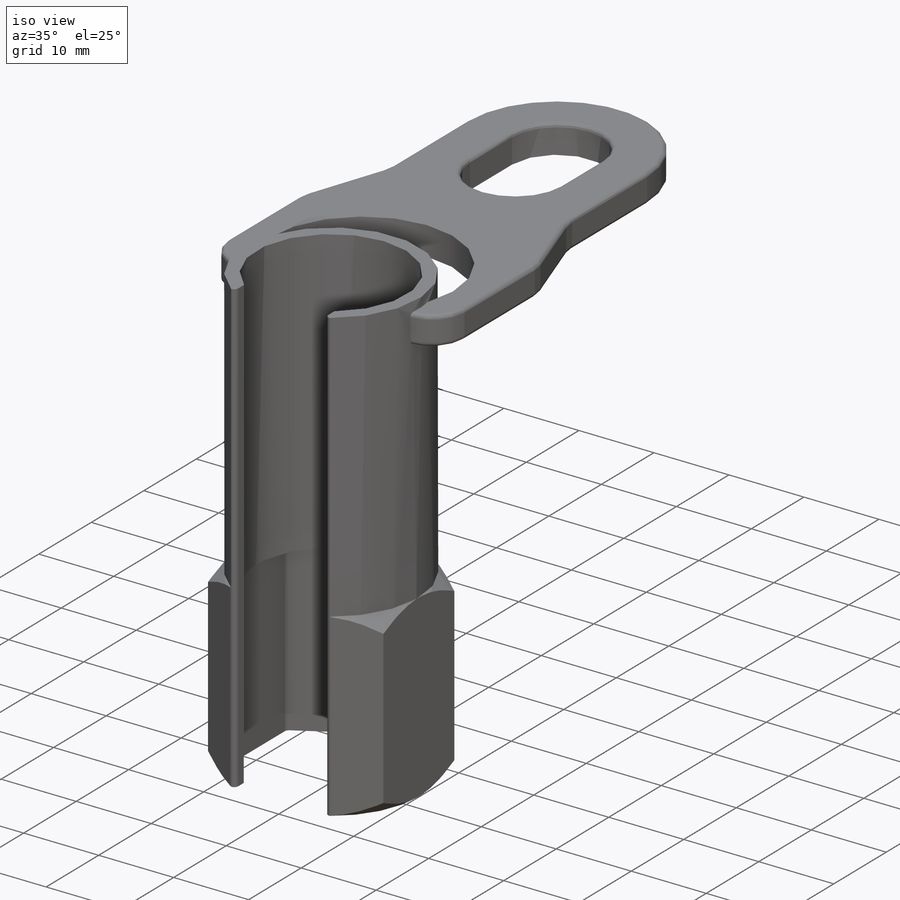
[diagram: iso view]
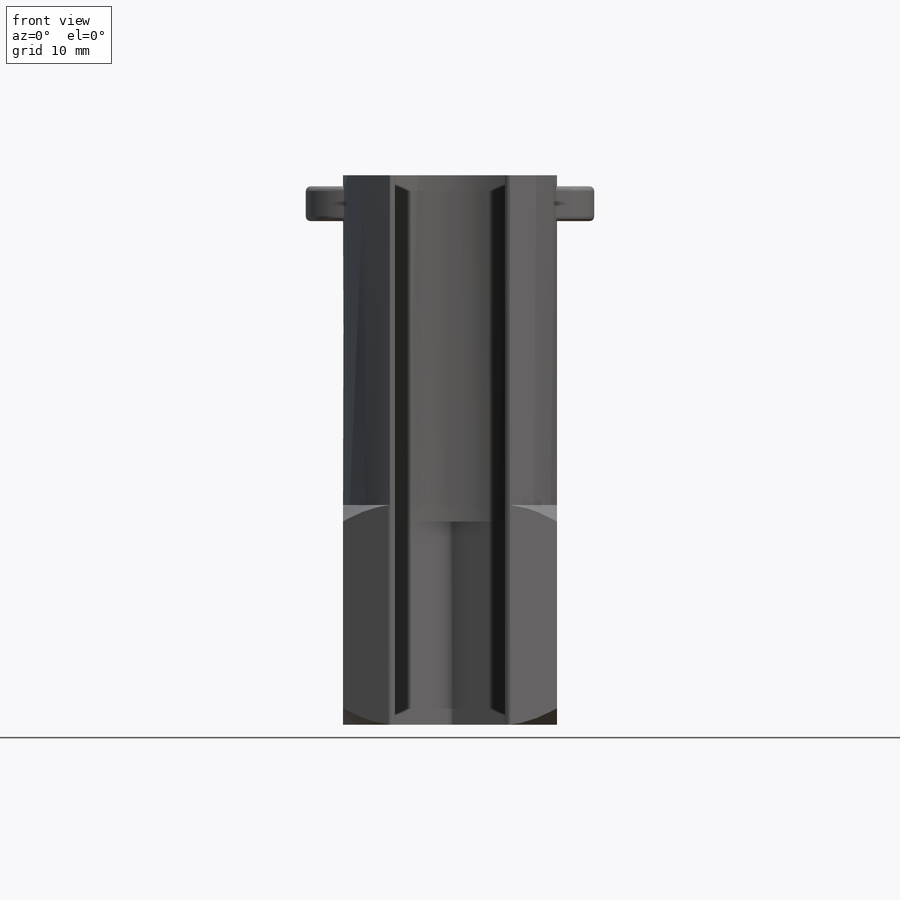
[diagram: front view]
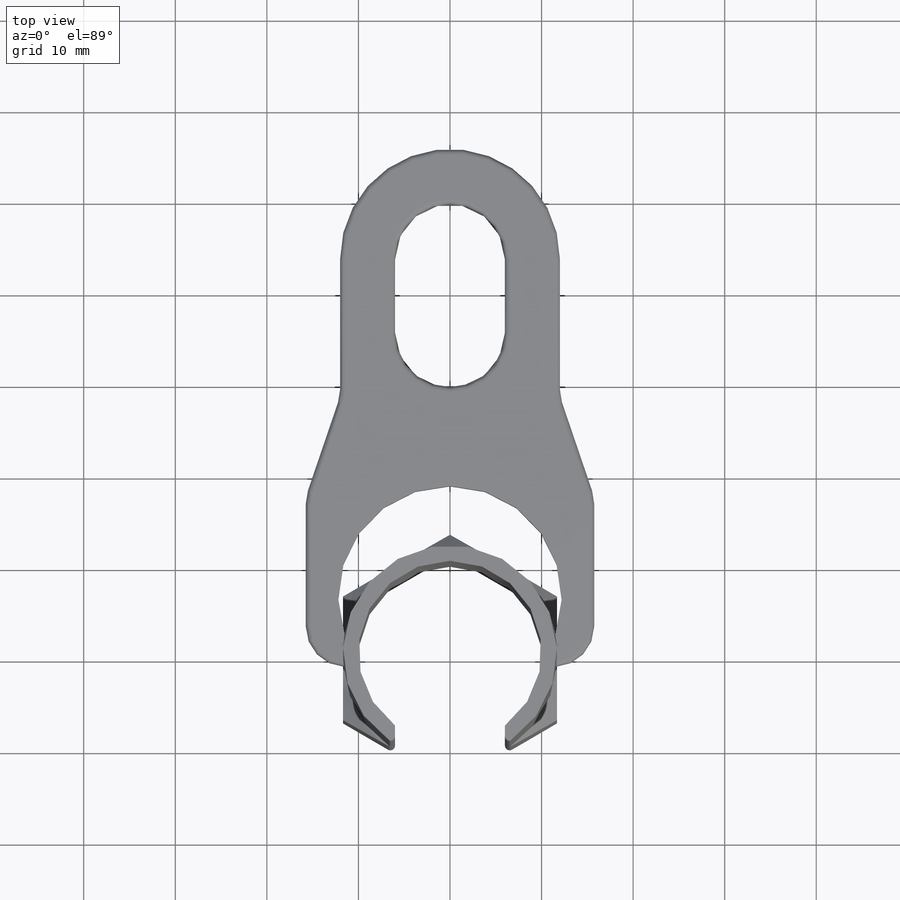
[diagram: top view]
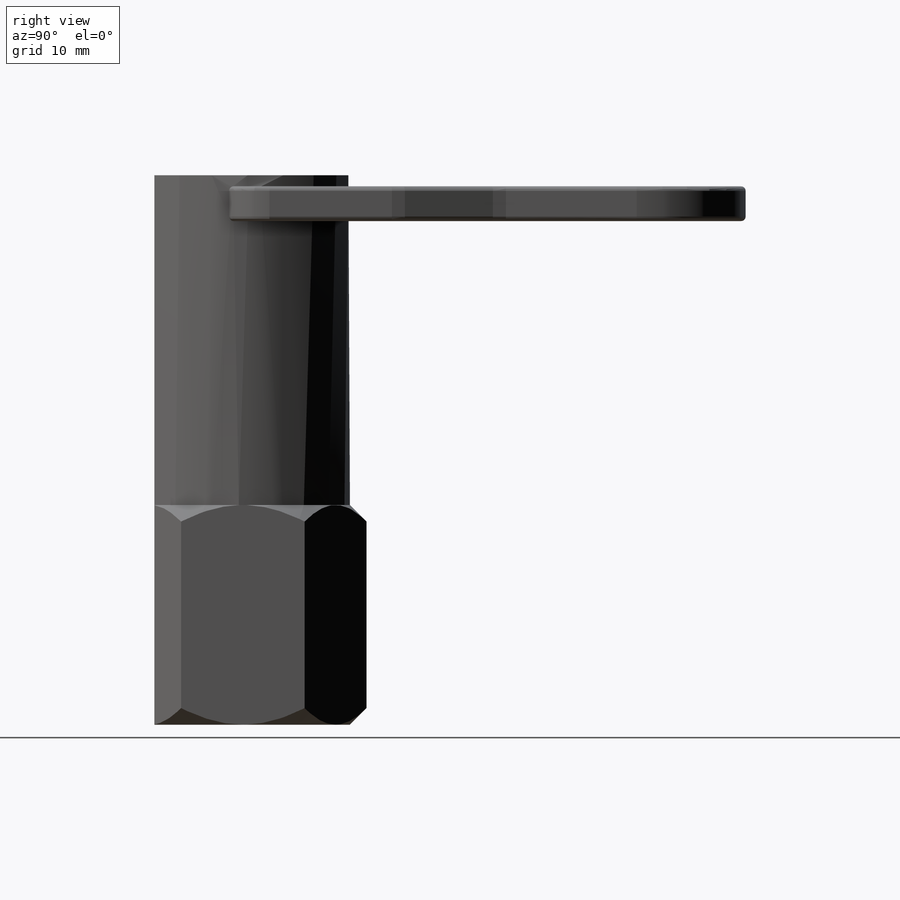
[diagram: right view]
SOLIDWORKS PART (.sldprt)
format: sldprt  version: not decoded by parser v0  size: 628,736 bytes
history: native  units: mm
features: sketch x14, extrude x7, cut_extrude x5, fillet x5, plane x3, material x1, dome x1 (+15 scaffold rows collapsed; 2 parser-record rows omitted)
feature tree (53):
  scaffold x15  (default folders/planes/origin — collapsed)
  material  "Material <not specified>"
  sketch  "Sketch1"  dims[c1.D=19.0mm c1.D2=20.0mm c1.D3=2.0mm c1.D4=2.0mm c1.C=15.0mm c1.D1=9.0mm c2.D3=8.3666mm c2.D=27.0mm c2.C=12.0mm c2.D2=2.5mm]
  parser-record x2  (decoder bookkeeping rows leaked as tree rows — omitted from the tree; the rows remain in map.json)
  extrude  "Extrude1"  Depth=24mm L1=24mm
  sketch  "Sketch3"  dims[D1=1.0mm]
  extrude  "Extrude2"  Depth=36mm L2=36mm
  sketch  "Sketch8"
  cut_extrude  "Cut-Extrude4"  [1 undecoded]
  sketch  "Sketch19"
  cut_extrude  "Cut-Extrude6"  [1 undecoded]
  sketch  "Sketch26"  dims[D1=20.0mm]
  cut_extrude  "Cut-Extrude9"  [1 undecoded]
  fillet  "Fillet1"  Radius=0.5mm
  sketch  "Sketch4"  dims[D1=20.0mm D2=3.8mm D3=2.5mm]
  sketch  "Sketch12"  dims[D1=6.0mm]
  plane  "Plane3"  Offset=55mm
  sketch  "Sketch16"  dims[c1.D1=4.0mm c1.D2=8.0mm c1.D3=8.0mm c1.D4=4.6mm c1.D13=4.6mm c2.D4=4.6mm c2.D5=4.6mm c2.D8=4.6mm c2.D9=4.6mm c2.D10=4.6mm c3.D4=4.4mm c3.D5=20.0mm c3.D6=26.0mm c3.D7=47.0mm c3.D8=25.0mm c3.D9=22.0mm c3.D1=35.5mm c3.D2=19.0mm c3.D3=32.0mm c4.D5=1.5mm c4.D8=47.0mm c4.D7=43.0mm c4.D9=26.0mm c4.D6=24.0mm c4.D10=35.5mm c4.D1=31.5mm c4.D11=~18.185935mm c4.D2=17.0mm c4.D12=~31.235377mm c4.D3=28.0mm c4.D13=~3.022331mm c4.D14=1.5mm]
  extrude  "Extrude7"  Depth=3.8mm
  sketch  "Sketch25"  dims[c1.D1=22.0mm c1.D2=6.0mm c1.D3=5.0mm c1.D4=4.0mm c2.D2=13.2mm c2.D5=1.0mm c2.D1=13.2mm c3.D2=12.0mm c3.D1=22.0mm c3.D3=2.0mm c3.D4=6.0mm c4.D1=20.0mm]
  cut_extrude  "Cut-Extrude8"  [1 undecoded]
  fillet  "Fillet4"  Radius=0.5mm
  sketch  "Sketch20"  dims[c1.D1=27.0mm c1.D2=20.0mm c1.D3=12.0mm c2.D2=2.0mm]
  extrude  "Extrude3"  Depth=38mm
  plane  "Plane7"  Offset=0.001mm
  sketch  "Sketch21"  dims[c1.D1=~11.645986mm c1.D3=11.5mm c1.D10=2.0mm c2.D1=2.0mm c2.D2=0.5mm c2.D3=0.5mm c2.D4=~3.276177mm c2.D5=~4.139911mm c2.D6=14.0mm c2.D7=~2.883128mm c2.D8=~12.003115mm c2.D9=~13.026921mm c3.D1=2.5mm c3.D2=~10.476048mm c3.D3=~12.162959mm c3.D4=~8.249559mm c3.D5=~13.796216mm c3.D6=~14.827412mm c3.D8=~5.205084mm c4.D2=3.0mm c4.D1=2.5mm c5.D2=10.0mm c5.D1=3.42mm c6.D2=2.5mm c6.D1=4.0mm]
  extrude  "Extrude4"  Depth=12mm
  plane  "Plane6"
  sketch  "Sketch22"  dims[c1.D1=5.2mm c1.D2=5.0mm c2.D1=5.0mm c2.D2=~6.215745mm c3.D1=5.6mm c3.D3=5.6mm c3.D2=6.0mm]
  extrude  "Extrude5"  Depth=10mm
  sketch  "Sketch23"  dims[D1=0.0mm D2=0.5mm]
  extrude  "Extrude6"  Depth=28mm
  dome  "Dome1"
  sketch  "Sketch24"  dims[c1.D2=7.5mm c1.D1=14.0mm c2.D2=0.5mm c2.D1=20.0mm]
  cut_extrude  "Cut-Extrude7"  [1 undecoded]
  fillet  "Fillet2"  Radius=0.5mm
  fillet  "Fillet3"  Radius=0.5mm
  fillet  "Fillet5"  Radius=1mm sq=5mm
decode coverage: 24 of 32 modeling features carry decoded parameters
note: ~ marks probable driven/reference dimensions
note: 5 parameter values undecoded
summary: no parameter record found for 5 features
note: suppression state not decoded; provenance and decode notes live in map.json
